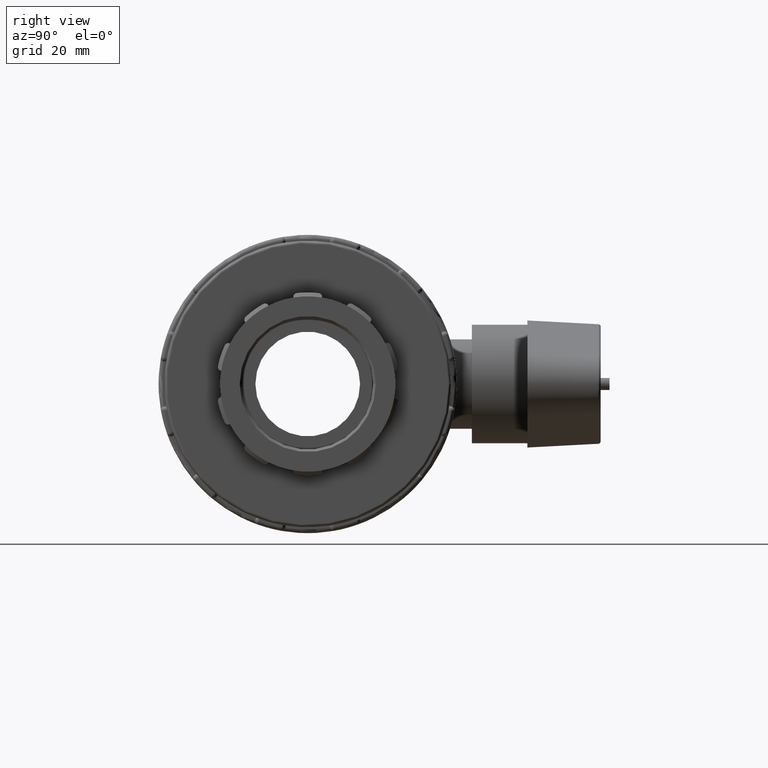
[diagram: clean part render]
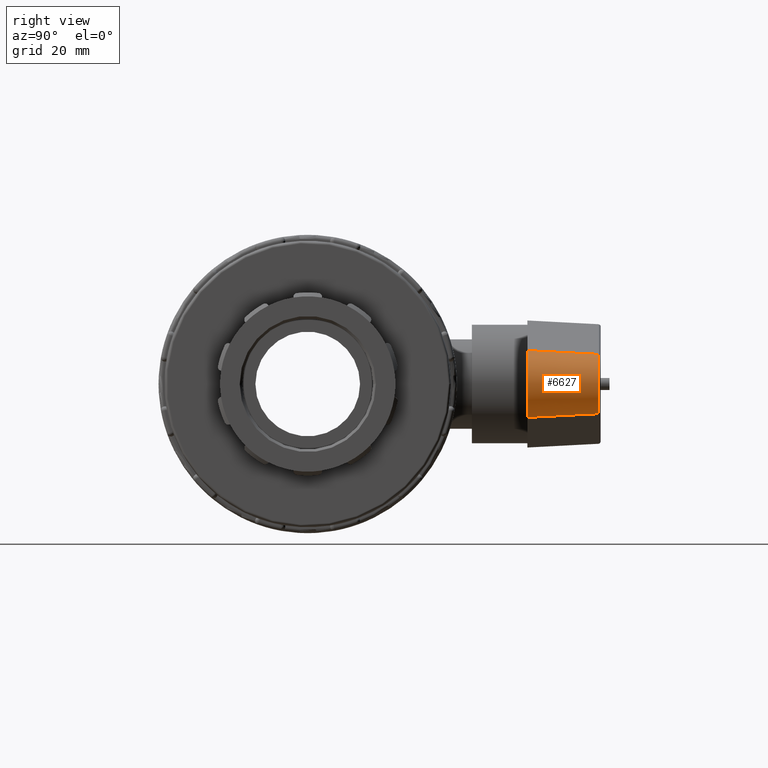
[diagram: same view with one face highlighted and labeled with its STEP entity id]
A machine part, right view. The second image highlights one B-rep face of the part: STEP entity #6627.
In plain terms, the highlighted conical surface has half-angle 3 deg.
Its self-contained STEP definition (entity closure, byte-faithful):
#341=CONICAL_SURFACE('',#7080,5.50000000000001,3.);
#430=FACE_OUTER_BOUND('',#864,.T.);
#864=EDGE_LOOP('',(#4361,#4362,#4363,#4364));
#1324=LINE('',#10367,#1720);
#1326=LINE('',#10371,#1722);
#1720=VECTOR('',#8072,13.0608031018627);
#1722=VECTOR('',#8076,13.0608031018627);
#2110=CIRCLE('',#7059,5.52395540068427);
#2123=CIRCLE('',#7081,6.20750502032106);
#2627=VERTEX_POINT('',#10315);
#2629=VERTEX_POINT('',#10321);
#2643=VERTEX_POINT('',#10366);
#2644=VERTEX_POINT('',#10370);
#3275=EDGE_CURVE('',#2627,#2629,#2110,.T.);
#3296=EDGE_CURVE('',#2629,#2643,#1324,.T.);
#3298=EDGE_CURVE('',#2627,#2644,#1326,.T.);
#3299=EDGE_CURVE('',#2644,#2643,#2123,.T.);
#4361=ORIENTED_EDGE('',*,*,#3275,.F.);
#4362=ORIENTED_EDGE('',*,*,#3298,.T.);
#4363=ORIENTED_EDGE('',*,*,#3299,.T.);
#4364=ORIENTED_EDGE('',*,*,#3296,.F.);
#6627=ADVANCED_FACE('',(#430),#341,.T.);
#7059=AXIS2_PLACEMENT_3D('',#10325,#8022,#8023);
#7080=AXIS2_PLACEMENT_3D('',#10369,#8074,#8075);
#7081=AXIS2_PLACEMENT_3D('',#10372,#8077,#8078);
#8022=DIRECTION('center_axis',(0.,1.,0.));
#8023=DIRECTION('ref_axis',(1.,0.,6.12323399573677E-17));
#8072=DIRECTION('',(0.00717824836249856,-0.998629534754574,-0.0518413451437134));
#8074=DIRECTION('center_axis',(0.,-1.,0.));
#8075=DIRECTION('ref_axis',(1.,3.27223628310572E-16,0.));
#8076=DIRECTION('',(0.00717824836249856,-0.998629534754574,0.0518413451437133));
#8077=DIRECTION('center_axis',(-3.27223628310572E-16,1.,0.));
#8078=DIRECTION('ref_axis',(1.,3.27223628310572E-16,0.));
#10315=CARTESIAN_POINT('',(40.857649743236,53.5429037251342,5.47175018941137));
#10321=CARTESIAN_POINT('',(40.857649743236,53.5429037251342,-5.47175018941137));
#10325=CARTESIAN_POINT('Origin',(40.1,53.5429037251342,-3.38244715004036E-16));
#10366=CARTESIAN_POINT('',(40.9514034317148,40.5,-6.14883979086911));
#10367=CARTESIAN_POINT('',(40.8543640897755,54.,-5.44802118388476));
#10369=CARTESIAN_POINT('Origin',(40.1,54.,0.));
#10370=CARTESIAN_POINT('',(40.9514034317148,40.5,6.14883979086911));
#10371=CARTESIAN_POINT('',(40.8543640897755,54.,5.44802118388477));
#10372=CARTESIAN_POINT('Origin',(40.1,40.5,0.));